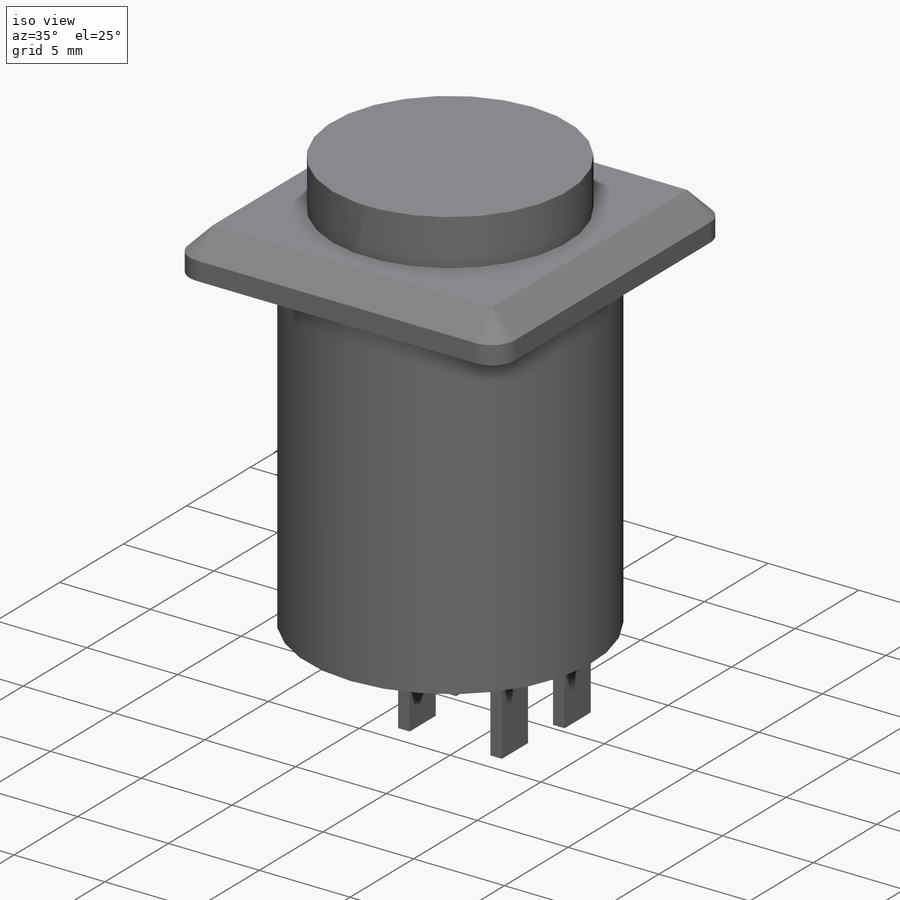
[diagram: iso view]
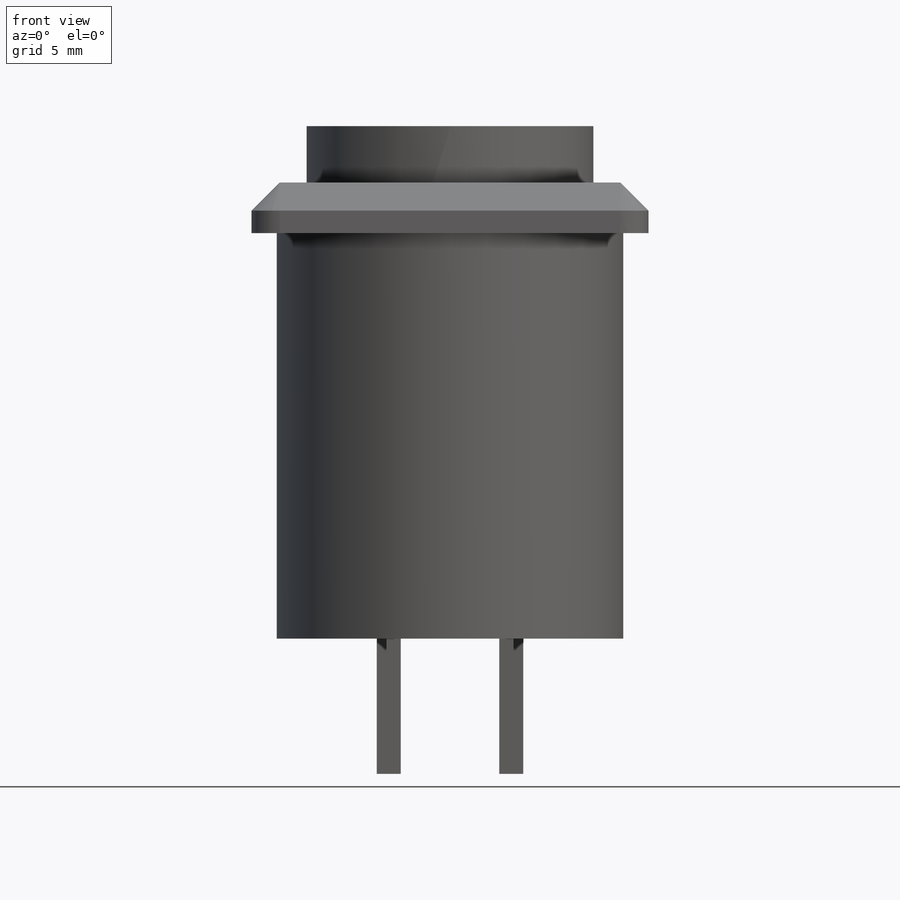
[diagram: front view]
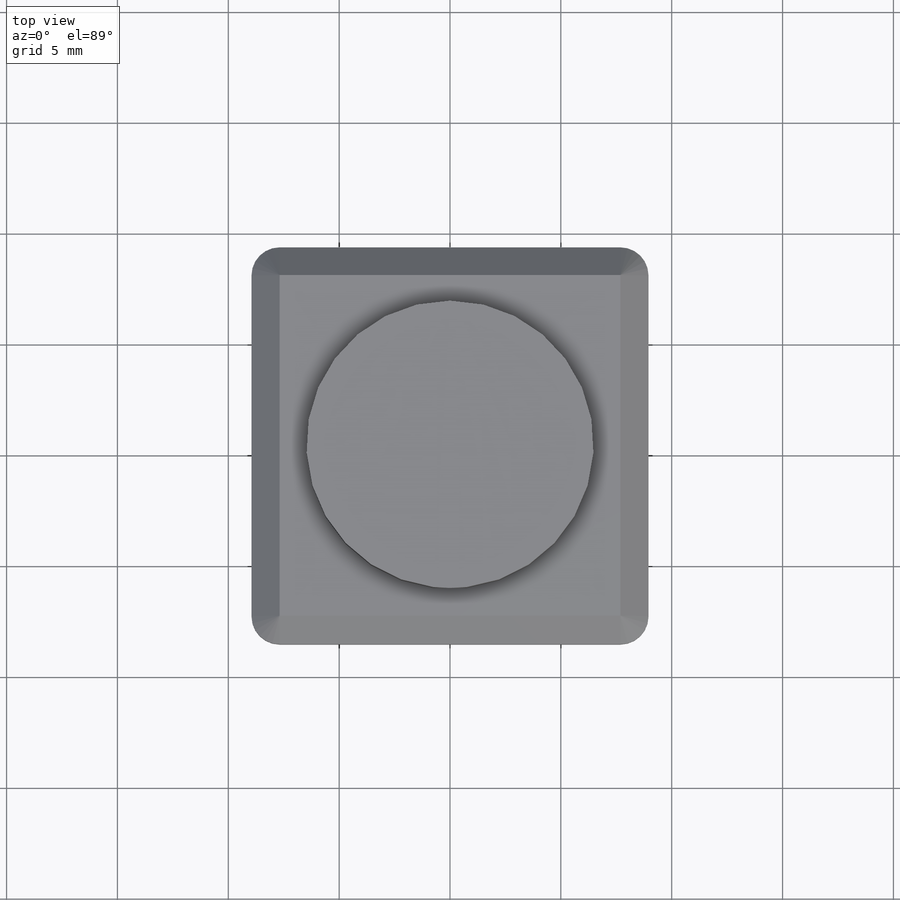
[diagram: top view]
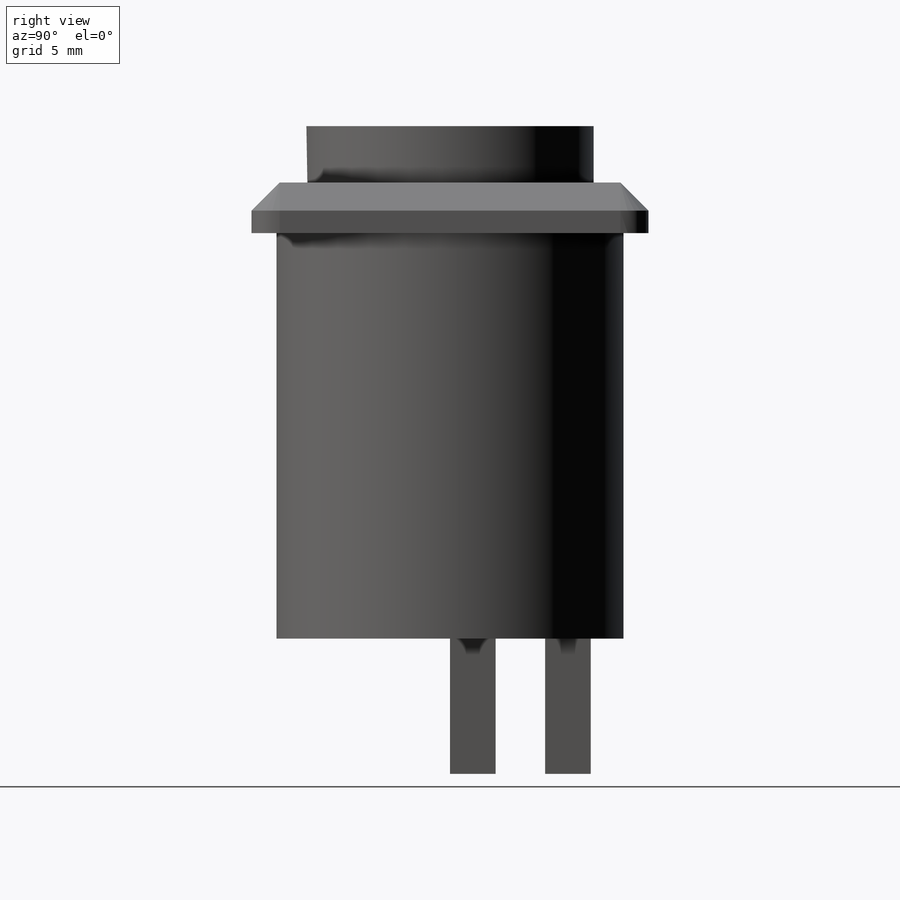
[diagram: right view]
SOLIDWORKS PART (.sldprt)
format: sldprt  version: not decoded by parser v0  size: 204,288 bytes
history: native  units: mm
features: sketch x4, extrude x4, material x1, fillet x1, chamfer x1 (+12 scaffold rows collapsed)
feature tree (23):
  scaffold x12  (default folders/planes/origin — collapsed)
  material  "Delrin 2700 NC010, Low Viscosity Acetal Copolymer (SS)"
  sketch  "Sketch1"  dims[D1=17.907mm]
  extrude  "Boss-Extrude1"  Depth=2.286mm
  sketch  "Sketch2"  dims[D1=12.954mm]
  extrude  "Boss-Extrude2"  Depth=2.54mm
  sketch  "Sketch3"  dims[D1=15.6464mm]
  extrude  "Boss-Extrude3"  Depth=18.288mm
  sketch  "Sketch4"  dims[D1=2.0574mm D2=0.635mm D3=6.35mm D4=6.604mm D5=5.715mm]
  extrude  "Boss-Extrude4"  Depth=6.096mm
  fillet  "Fillet1"  Radius=1.27mm
  chamfer  "Chamfer1"  Distance=1.27mm Angle=45deg
decode coverage: 10 of 10 modeling features carry decoded parameters
note: suppression state not decoded; provenance and decode notes live in map.json
